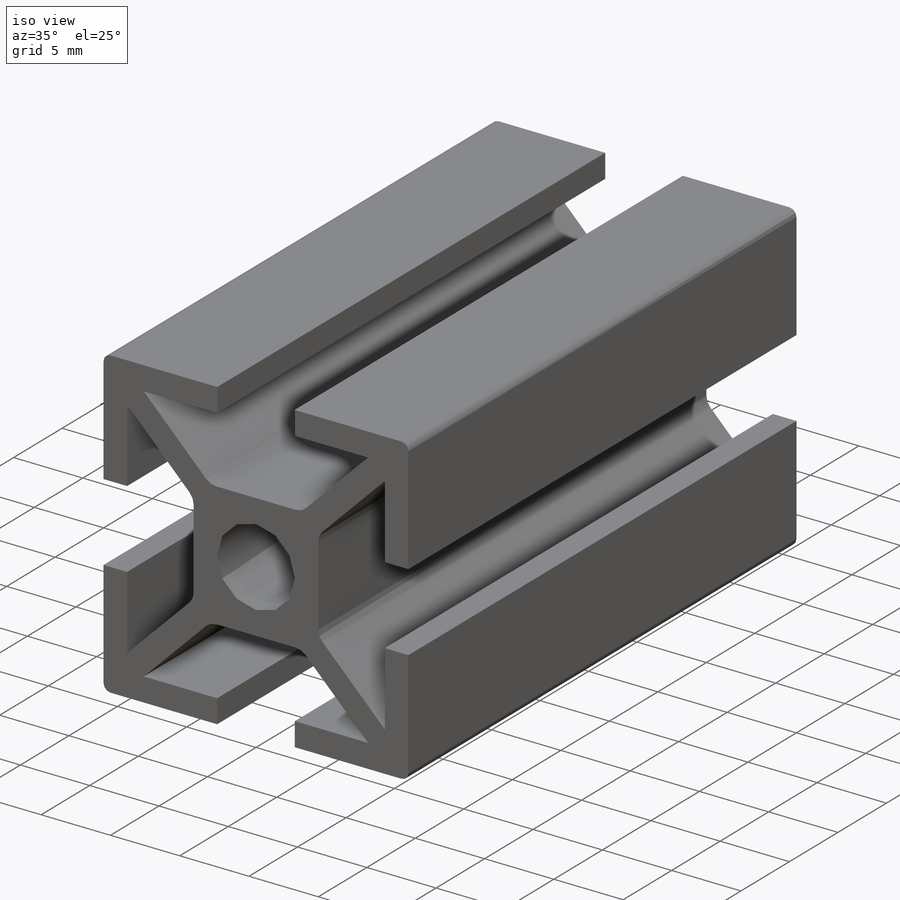
[diagram: iso view]
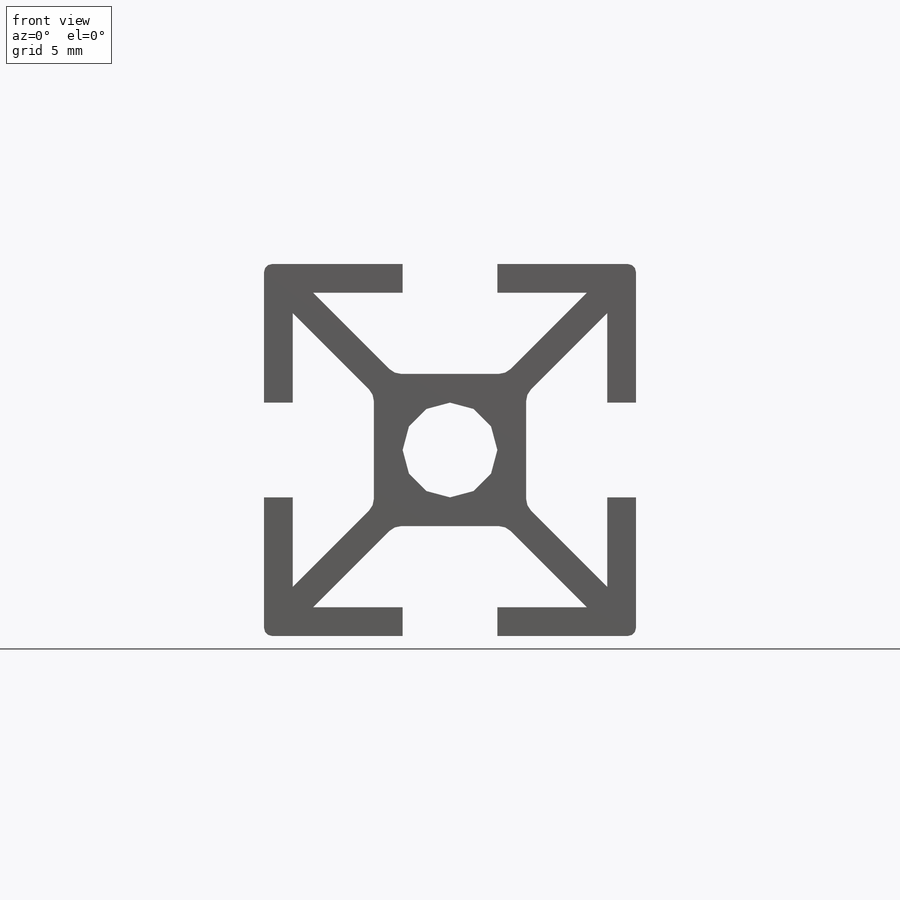
[diagram: front view]
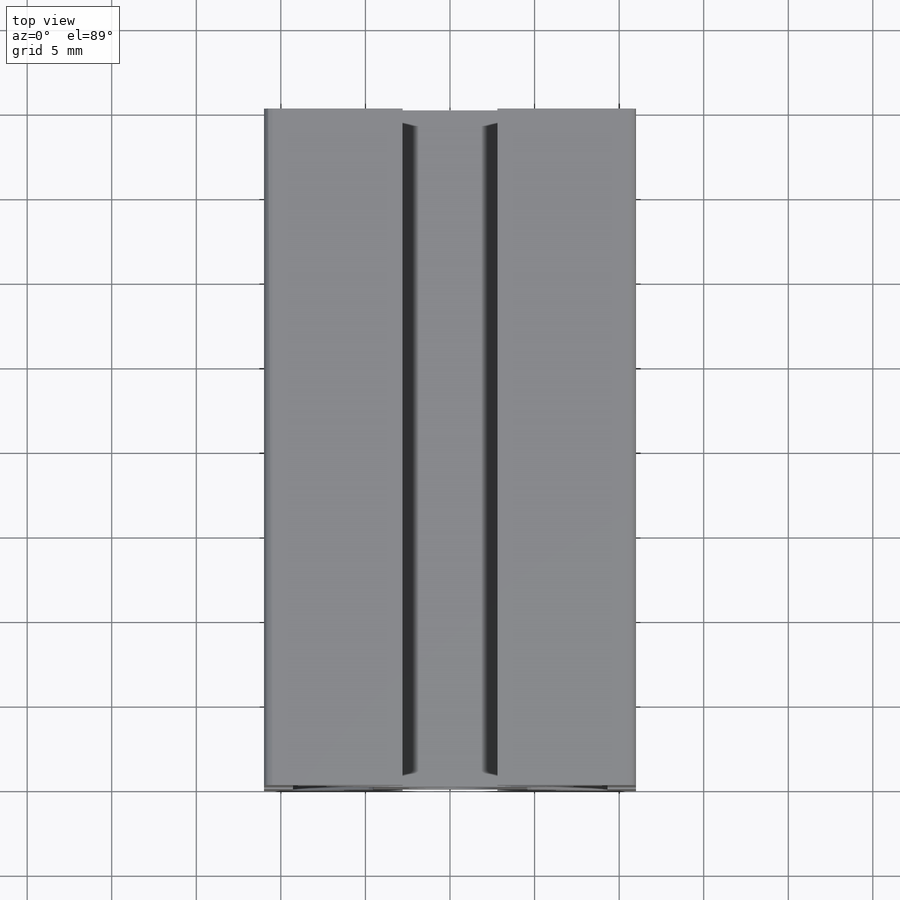
[diagram: top view]
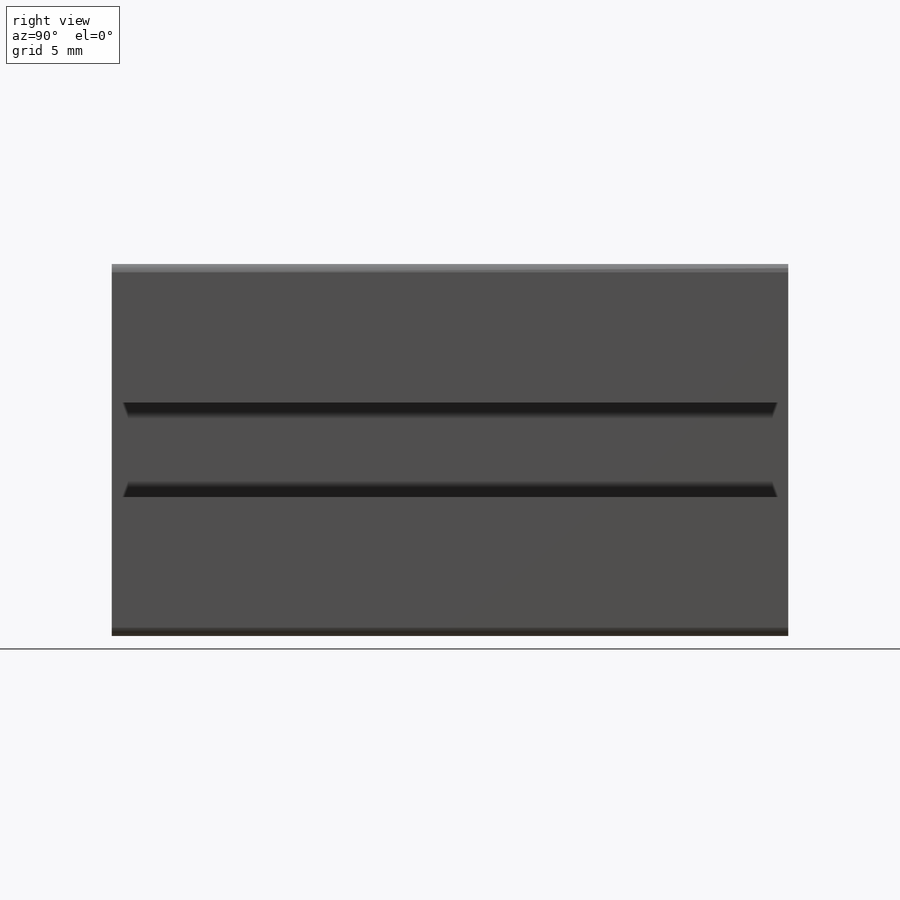
[diagram: right view]
SOLIDWORKS PART (.sldprt)
format: sldprt  version: not decoded by parser v0  size: 280,064 bytes
history: native  units: mm
features: plane x3, sketch x2, fillet x2, material x1, extrude x1, cut_extrude x1 (+12 scaffold rows collapsed)
feature tree (22):
  scaffold x12  (default folders/planes/origin — collapsed)
  material  "Matériau <non spécifié>"
  plane  "Plan de face"
  plane  "Plan de dessus"
  plane  "Plan de droite"
  sketch  "Esquisse1"  dims[c1.D1=11.0mm c1.D2=~10.778649mm c2.D2=90.0deg c3.D2=22.0mm c3.D3=~5.918635mm c4.D2=11.0mm c4.D3=2.8mm c4.D4=2.8mm c4.D5=1.7mm c4.D6=1.7mm c4.D7=1.7mm c4.D8=1.7mm c4.D9=~5.297918mm c5.D9=45.0deg c6.D9=4.8mm c6.D10=4.8mm c6.D11=~3.297918mm c7.D11=225.0deg]
  extrude  "Extrusion1"  Depth=40mm
  sketch  "Esquisse2"  dims[D1=5.6mm]
  cut_extrude  "Enlèv. mat.-Extru.1"  [1 undecoded]
  fillet  "Congé1"  Radius=0.5mm
  fillet  "Congé2"  Radius=1mm
decode coverage: 5 of 6 modeling features carry decoded parameters
note: ~ marks probable driven/reference dimensions
note: 1 parameter value undecoded
note: suppression state not decoded; provenance and decode notes live in map.json
